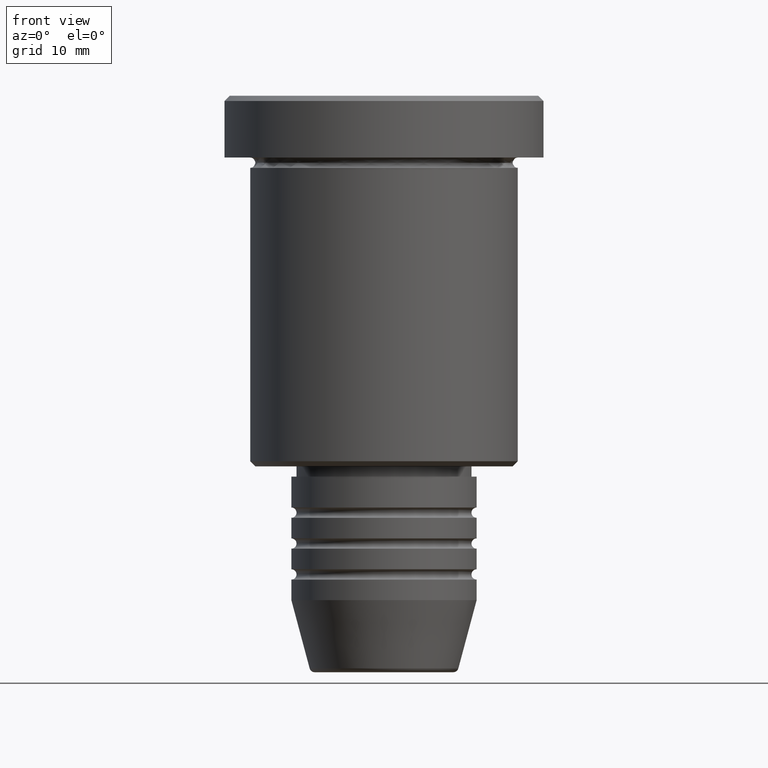
[diagram: clean part render]
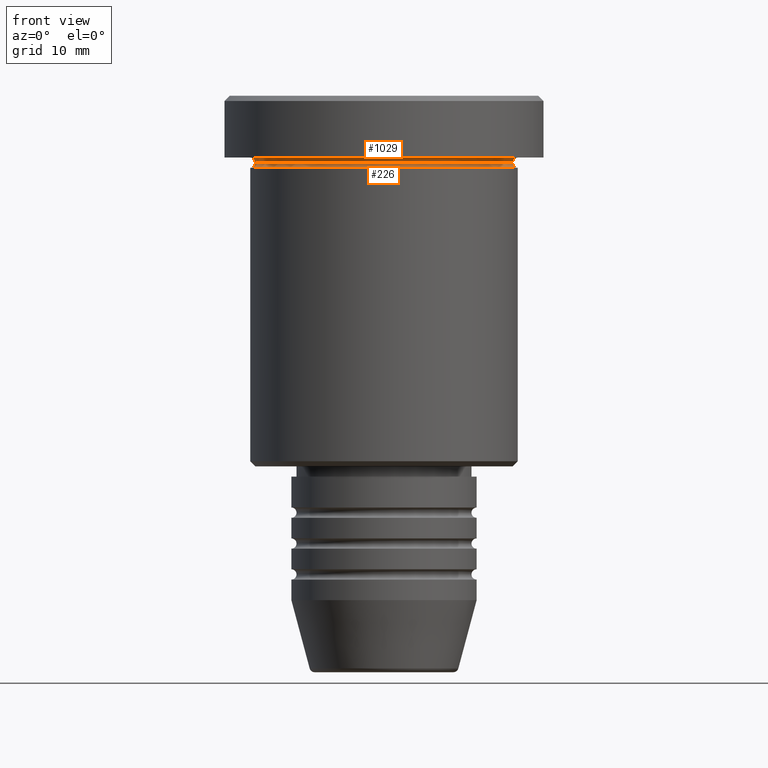
[diagram: same view with one multi-face feature highlighted, each face labeled with its STEP entity id]
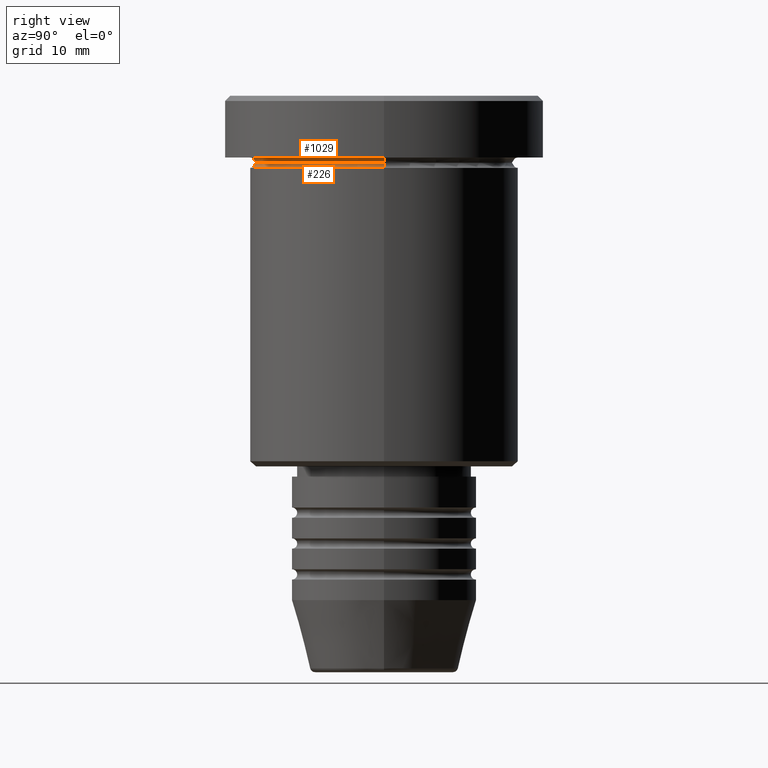
[diagram: same view with one multi-face feature highlighted, each face labeled with its STEP entity id]
A machine part, front view. The highlighted faces form ONE feature: a constant-radius fillet chain: 2 tangent blend faces with common blend radius 0.5 mm. The faces share edges in the B-rep.
A second angle (right view) of the same feature is appended — it is thin or edge-on in the first view.
Their STEP definitions:
[1] entity #226 (Torus):
#4 = ORIENTED_EDGE ( 'NONE', *, *, #743, .F. ) ;
#23 = DIRECTION ( 'NONE',  ( 1.000000000000000000, 0.000000000000000000, 0.000000000000000000 ) ) ;
#42 = DIRECTION ( 'NONE',  ( 0.000000000000000000, -1.000000000000000000, 0.000000000000000000 ) ) ;
#59 = DIRECTION ( 'NONE',  ( 1.000000000000000000, 0.000000000000000000, 0.000000000000000000 ) ) ;
#66 = CARTESIAN_POINT ( 'NONE',  ( 13.00000000000000000, 0.000000000000000000, -6.999999999999995559 ) ) ;
#104 = CARTESIAN_POINT ( 'NONE',  ( -13.00000000000000000, 1.592040838891559095E-15, -6.999999999999995559 ) ) ;
#112 = AXIS2_PLACEMENT_3D ( 'NONE', #1174, #881, #1076 ) ;
#146 = CARTESIAN_POINT ( 'NONE',  ( 0.000000000000000000, 0.000000000000000000, -6.999999999999995559 ) ) ;
#152 = FACE_OUTER_BOUND ( 'NONE', #583, .T. ) ;
#171 = ORIENTED_EDGE ( 'NONE', *, *, #215, .F. ) ;
#175 = CIRCLE ( 'NONE', #484, 13.00000000000000000 ) ;
#215 = EDGE_CURVE ( 'NONE', #628, #711, #480, .T. ) ;
#226 = ADVANCED_FACE ( 'NONE', ( #152 ), #1120, .F. ) ;
#249 = CARTESIAN_POINT ( 'NONE',  ( 0.000000000000000000, 0.000000000000000000, -6.499999999999995559 ) ) ;
#257 = DIRECTION ( 'NONE',  ( -0.000000000000000000, -0.000000000000000000, 1.000000000000000000 ) ) ;
#289 = CIRCLE ( 'NONE', #112, 0.5000000000000004441 ) ;
#324 = CARTESIAN_POINT ( 'NONE',  ( 13.00000000000000000, 0.000000000000000000, -6.499999999999995559 ) ) ;
#338 = EDGE_CURVE ( 'NONE', #628, #1157, #289, .T. ) ;
#362 = AXIS2_PLACEMENT_3D ( 'NONE', #872, #257, #59 ) ;
#432 = DIRECTION ( 'NONE',  ( -0.000000000000000000, -0.000000000000000000, 1.000000000000000000 ) ) ;
#444 = CARTESIAN_POINT ( 'NONE',  ( -12.49999999999999822, 1.561424668912875308E-15, -6.499999999999995559 ) ) ;
#446 = AXIS2_PLACEMENT_3D ( 'NONE', #324, #42, #1135 ) ;
#469 = ORIENTED_EDGE ( 'NONE', *, *, #338, .T. ) ;
#480 = CIRCLE ( 'NONE', #362, 12.49999999999999822 ) ;
#484 = AXIS2_PLACEMENT_3D ( 'NONE', #146, #861, #23 ) ;
#522 = DIRECTION ( 'NONE',  ( 1.000000000000000000, 0.000000000000000000, 0.000000000000000000 ) ) ;
#538 = VERTEX_POINT ( 'NONE', #66 ) ;
#568 = CARTESIAN_POINT ( 'NONE',  ( 12.49999999999999822, 0.000000000000000000, -6.499999999999995559 ) ) ;
#583 = EDGE_LOOP ( 'NONE', ( #171, #469, #819, #4 ) ) ;
#628 = VERTEX_POINT ( 'NONE', #444 ) ;
#711 = VERTEX_POINT ( 'NONE', #568 ) ;
#743 = EDGE_CURVE ( 'NONE', #711, #538, #1083, .T. ) ;
#819 = ORIENTED_EDGE ( 'NONE', *, *, #1060, .T. ) ;
#861 = DIRECTION ( 'NONE',  ( -0.000000000000000000, -0.000000000000000000, 1.000000000000000000 ) ) ;
#872 = CARTESIAN_POINT ( 'NONE',  ( 0.000000000000000000, 0.000000000000000000, -6.499999999999995559 ) ) ;
#881 = DIRECTION ( 'NONE',  ( 1.224646799147353207E-16, 1.000000000000000000, 0.000000000000000000 ) ) ;
#1039 = AXIS2_PLACEMENT_3D ( 'NONE', #249, #432, #522 ) ;
#1060 = EDGE_CURVE ( 'NONE', #1157, #538, #175, .T. ) ;
#1076 = DIRECTION ( 'NONE',  ( -1.000000000000000000, 1.224646799147353454E-16, 0.000000000000000000 ) ) ;
#1083 = CIRCLE ( 'NONE', #446, 0.5000000000000004441 ) ;
#1120 = TOROIDAL_SURFACE ( 'NONE', #1039, 13.00000000000000000, 0.5000000000000000000 ) ;
#1135 = DIRECTION ( 'NONE',  ( 0.000000000000000000, 0.000000000000000000, -1.000000000000000000 ) ) ;
#1157 = VERTEX_POINT ( 'NONE', #104 ) ;
#1174 = CARTESIAN_POINT ( 'NONE',  ( -13.00000000000000000, 1.592040838891559095E-15, -6.499999999999995559 ) ) ;
[2] entity #1029 (Torus):
#6 = CARTESIAN_POINT ( 'NONE',  ( -13.00000000000000000, 0.000000000000000000, -5.999999999999994671 ) ) ;
#41 = ORIENTED_EDGE ( 'NONE', *, *, #163, .F. ) ;
#59 = DIRECTION ( 'NONE',  ( 1.000000000000000000, 0.000000000000000000, 0.000000000000000000 ) ) ;
#75 = FACE_OUTER_BOUND ( 'NONE', #590, .T. ) ;
#131 = DIRECTION ( 'NONE',  ( -1.224646799147353207E-16, 1.000000000000000000, 0.000000000000000000 ) ) ;
#163 = EDGE_CURVE ( 'NONE', #462, #770, #867, .T. ) ;
#215 = EDGE_CURVE ( 'NONE', #628, #711, #480, .T. ) ;
#216 = TOROIDAL_SURFACE ( 'NONE', #666, 13.00000000000000000, 0.5000000000000000000 ) ;
#220 = DIRECTION ( 'NONE',  ( -1.000000000000000000, -1.224646799147353454E-16, 0.000000000000000000 ) ) ;
#223 = CARTESIAN_POINT ( 'NONE',  ( -13.00000000000000000, 0.000000000000000000, -6.499999999999995559 ) ) ;
#228 = DIRECTION ( 'NONE',  ( 0.000000000000000000, 0.000000000000000000, -1.000000000000000000 ) ) ;
#245 = DIRECTION ( 'NONE',  ( -1.000000000000000000, 0.000000000000000000, 0.000000000000000000 ) ) ;
#257 = DIRECTION ( 'NONE',  ( -0.000000000000000000, -0.000000000000000000, 1.000000000000000000 ) ) ;
#301 = CARTESIAN_POINT ( 'NONE',  ( 13.00000000000000000, 1.592040838891559095E-15, -5.999999999999994671 ) ) ;
#336 = ORIENTED_EDGE ( 'NONE', *, *, #748, .F. ) ;
#362 = AXIS2_PLACEMENT_3D ( 'NONE', #872, #257, #59 ) ;
#367 = AXIS2_PLACEMENT_3D ( 'NONE', #675, #131, #220 ) ;
#380 = ORIENTED_EDGE ( 'NONE', *, *, #1115, .T. ) ;
#385 = CIRCLE ( 'NONE', #367, 0.5000000000000004441 ) ;
#444 = CARTESIAN_POINT ( 'NONE',  ( -12.49999999999999822, 1.561424668912875308E-15, -6.499999999999995559 ) ) ;
#447 = CARTESIAN_POINT ( 'NONE',  ( 0.000000000000000000, 0.000000000000000000, -6.499999999999995559 ) ) ;
#462 = VERTEX_POINT ( 'NONE', #6 ) ;
#480 = CIRCLE ( 'NONE', #362, 12.49999999999999822 ) ;
#568 = CARTESIAN_POINT ( 'NONE',  ( 12.49999999999999822, 0.000000000000000000, -6.499999999999995559 ) ) ;
#590 = EDGE_LOOP ( 'NONE', ( #660, #380, #41, #336 ) ) ;
#612 = DIRECTION ( 'NONE',  ( -0.000000000000000000, -0.000000000000000000, 1.000000000000000000 ) ) ;
#628 = VERTEX_POINT ( 'NONE', #444 ) ;
#643 = AXIS2_PLACEMENT_3D ( 'NONE', #952, #612, #245 ) ;
#660 = ORIENTED_EDGE ( 'NONE', *, *, #215, .T. ) ;
#666 = AXIS2_PLACEMENT_3D ( 'NONE', #447, #1075, #798 ) ;
#675 = CARTESIAN_POINT ( 'NONE',  ( 13.00000000000000000, 1.592040838891559095E-15, -6.499999999999995559 ) ) ;
#682 = DIRECTION ( 'NONE',  ( -0.000000000000000000, -1.000000000000000000, -0.000000000000000000 ) ) ;
#711 = VERTEX_POINT ( 'NONE', #568 ) ;
#738 = CIRCLE ( 'NONE', #1143, 0.5000000000000004441 ) ;
#748 = EDGE_CURVE ( 'NONE', #628, #462, #738, .T. ) ;
#770 = VERTEX_POINT ( 'NONE', #301 ) ;
#798 = DIRECTION ( 'NONE',  ( -1.000000000000000000, 0.000000000000000000, 0.000000000000000000 ) ) ;
#867 = CIRCLE ( 'NONE', #643, 13.00000000000000000 ) ;
#872 = CARTESIAN_POINT ( 'NONE',  ( 0.000000000000000000, 0.000000000000000000, -6.499999999999995559 ) ) ;
#952 = CARTESIAN_POINT ( 'NONE',  ( 0.000000000000000000, 0.000000000000000000, -5.999999999999995559 ) ) ;
#1029 = ADVANCED_FACE ( 'NONE', ( #75 ), #216, .F. ) ;
#1075 = DIRECTION ( 'NONE',  ( 0.000000000000000000, 0.000000000000000000, -1.000000000000000000 ) ) ;
#1115 = EDGE_CURVE ( 'NONE', #711, #770, #385, .T. ) ;
#1143 = AXIS2_PLACEMENT_3D ( 'NONE', #223, #682, #228 ) ;